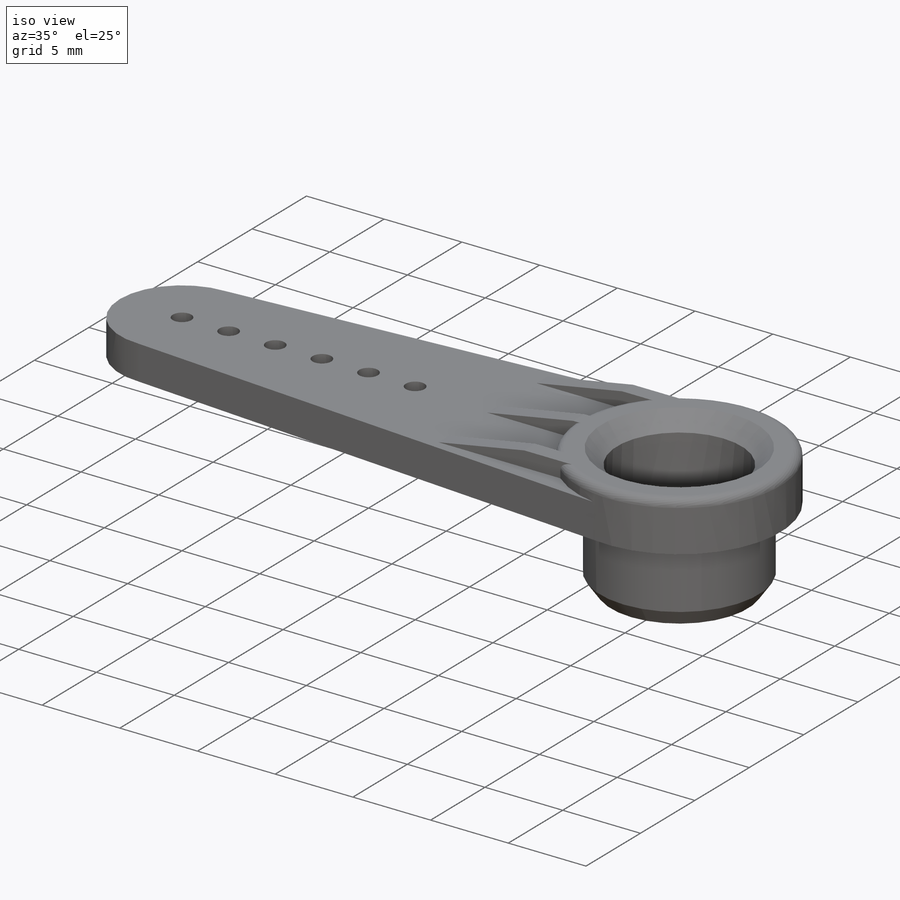
[diagram: iso view]
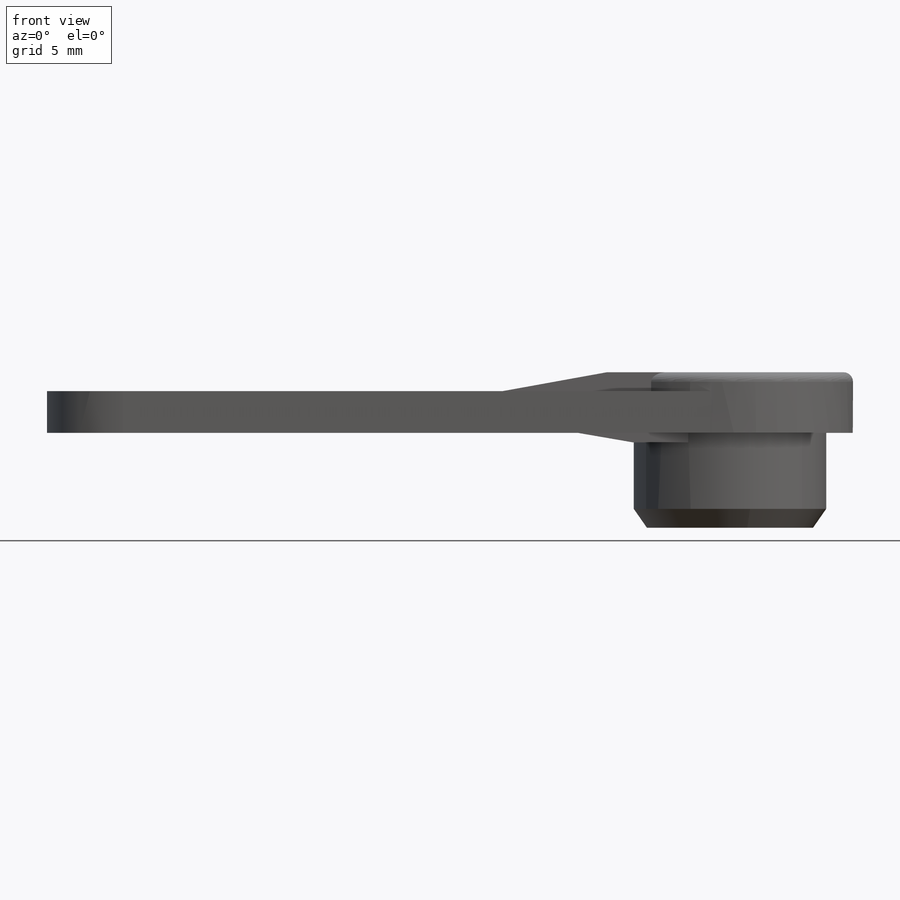
[diagram: front view]
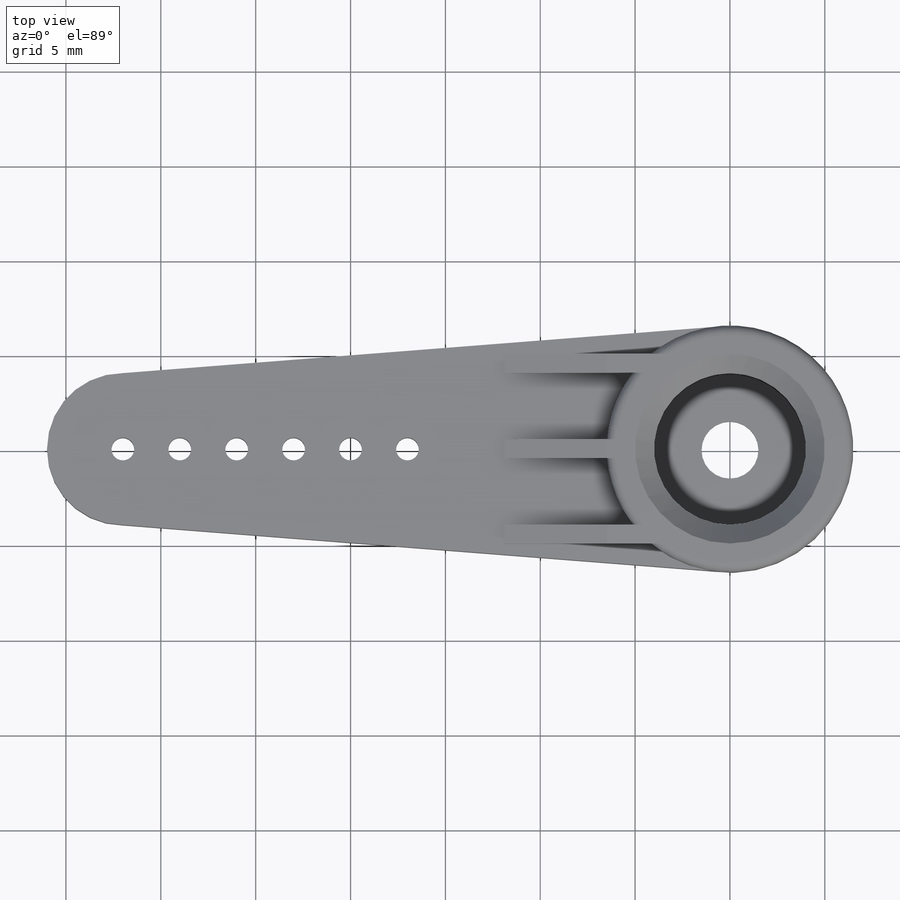
[diagram: top view]
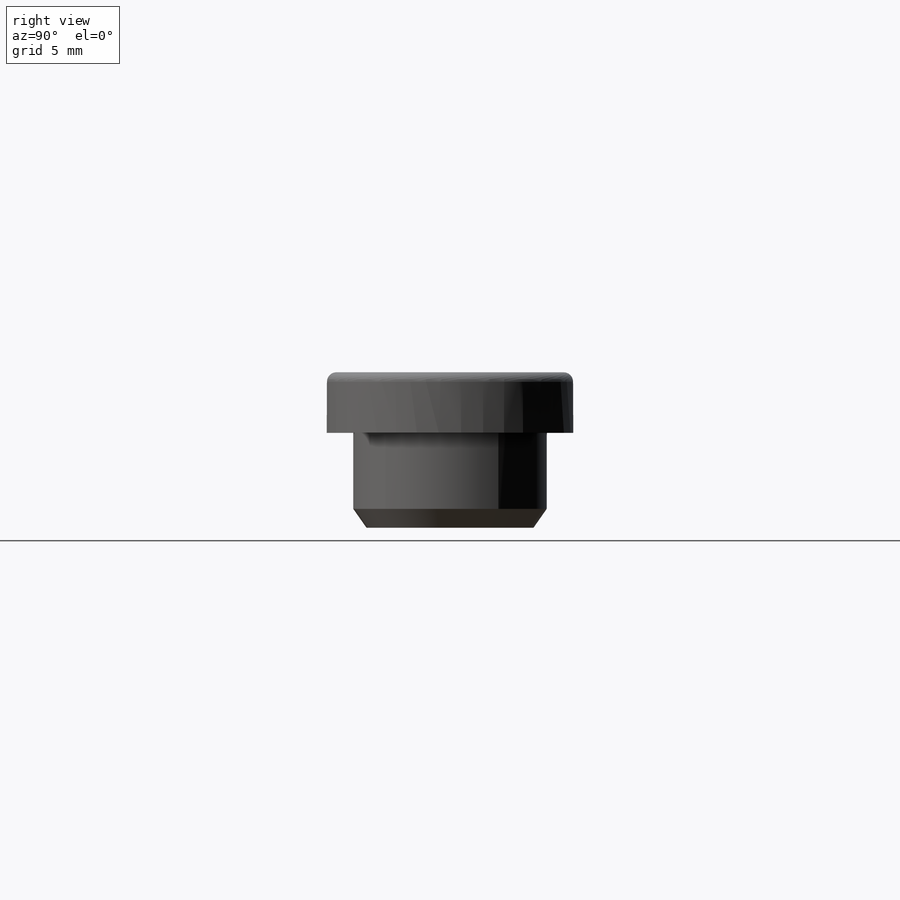
[diagram: right view]
SOLIDWORKS PART (.sldprt)
format: sldprt  version: not decoded by parser v0  size: 318,464 bytes
history: native  units: mm
features: sketch x10, cut_extrude x7, plane x3, extrude x3, chamfer x2, material x1, fillet x1 (+11 scaffold rows collapsed)
feature tree (38):
  scaffold x11  (default folders/planes/origin — collapsed)
  material  "Материал <не указан>"
  plane  "Спереди"
  plane  "Сверху"
  plane  "Справа"
  sketch  "Эскиз1"  dims[D1=1.5mm]
  extrude  "Вытянуть2"  Depth=8.2mm
  sketch  "Эскиз4"  dims[D1=~4.996425mm]
  cut_extrude  "Вытянуть4"  Depth=5mm
  sketch  "Эскиз5"  dims[D1=~2.723117mm]
  cut_extrude  "Вытянуть5"  Depth=3mm
  sketch  "Эскиз6"  dims[D1=~4.117561mm]
  cut_extrude  "Вытянуть6"  Depth=0.1mm
  chamfer  "Фаска1"  Distance=1mm Angle=35deg
  sketch  "Эскиз7"  dims[D1=6.59mm]
  cut_extrude  "Вытянуть7"  Depth=1mm
  sketch  "Эскиз8"  dims[D1=~5.493788mm]
  cut_extrude  "Вытянуть8"  Depth=4.5mm
  sketch  "Эскиз9"  dims[D1=1.0mm]
  extrude  "Вытянуть9"  Depth=0.5mm
  sketch  "Эскиз10"
  cut_extrude  "Вытянуть11"  [1 undecoded]
  sketch  "Эскиз11"  dims[D1=0.5mm]
  extrude  "Вытянуть12"  Depth=1mm
  sketch  "Эскиз12"
  cut_extrude  "Вытянуть13"  [1 undecoded]
  chamfer  "Фаска2"  Distance=1mm Angle=45deg
  fillet  "Скругление1"  Radius=0.5mm
decode coverage: 19 of 23 modeling features carry decoded parameters
note: ~ marks probable driven/reference dimensions
note: 2 parameter values undecoded
note: suppression state not decoded; provenance and decode notes live in map.json
